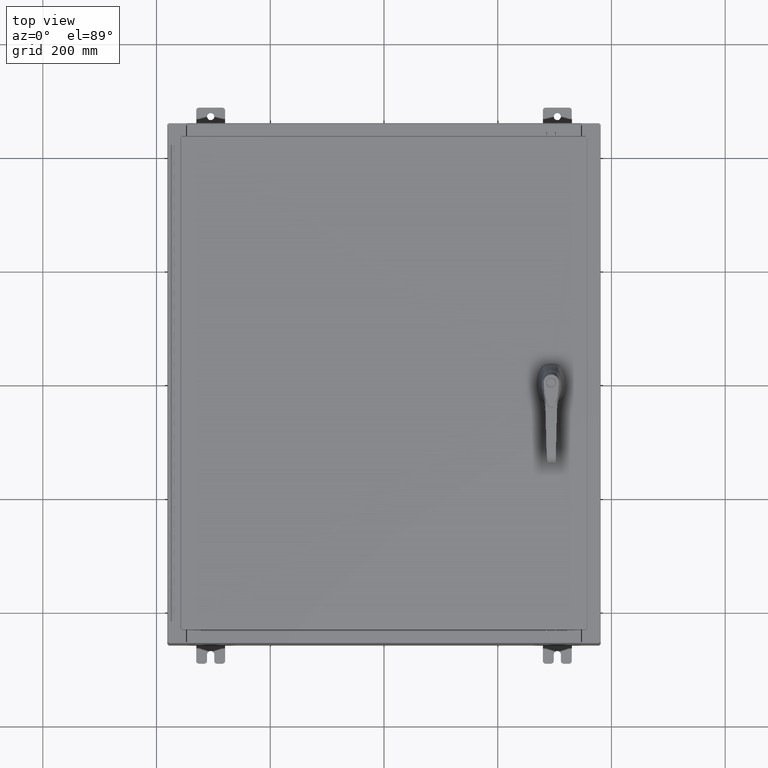
[diagram: clean part render]
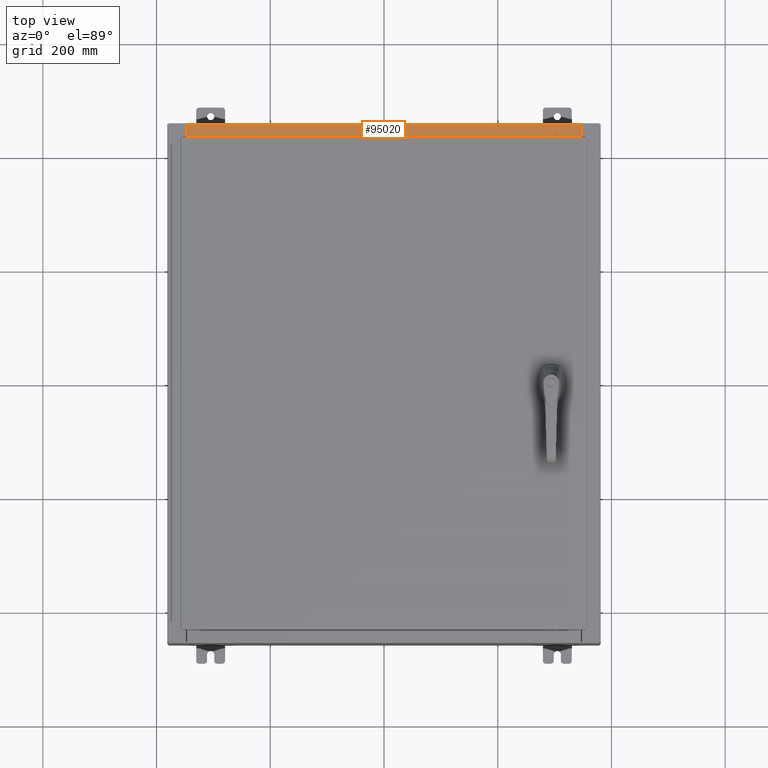
[diagram: same view with one face highlighted and labeled with its STEP entity id]
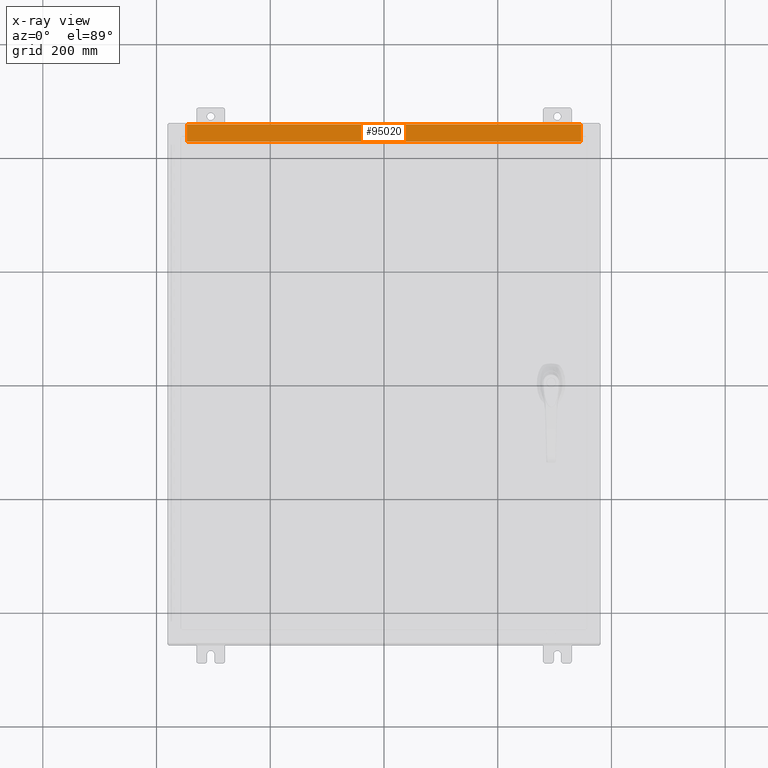
[diagram: x-ray of the same camera — body ghosted, the highlighted face saturated]
A machine part, top view. The second image highlights one B-rep face of the part: STEP entity #95020.
The next image is the same camera in x-ray: the body ghosted, the highlighted face saturated — about 0% of this face is hidden behind the body in this view.
In plain terms, the highlighted planar face has unit normal (0, 0, 1).
Its self-contained STEP definition (entity closure, byte-faithful):
#83 = FACE_OUTER_BOUND ( 'NONE', #82177, .T. ) ;
#753 = CARTESIAN_POINT ( 'NONE',  ( -13.63720000000000400, -0.07469999999999973900, 5.000000000000000000 ) ) ;
#1645 = ORIENTED_EDGE ( 'NONE', *, *, #39987, .F. ) ;
#2860 = CARTESIAN_POINT ( 'NONE',  ( 13.63719999999999800, -1.300299999999999800, 5.000000000000004400 ) ) ;
#4290 = VERTEX_POINT ( 'NONE', #94039 ) ;
#5804 = ORIENTED_EDGE ( 'NONE', *, *, #63566, .F. ) ;
#9500 = CARTESIAN_POINT ( 'NONE',  ( 13.63719999999999800, -1.287299999999999900, 5.000000000000002700 ) ) ;
#10260 = DIRECTION ( 'NONE',  ( -0.0000000000000000000, 1.000000000000000000, -3.566381192773190000E-015 ) ) ;
#11936 = LINE ( 'NONE', #121614, #74237 ) ;
#12373 = DIRECTION ( 'NONE',  ( -0.0000000000000000000, -1.000000000000000000, 3.566381192773190000E-015 ) ) ;
#14751 = VERTEX_POINT ( 'NONE', #63749 ) ;
#22777 = PLANE ( 'NONE',  #55351 ) ;
#27471 = EDGE_CURVE ( 'NONE', #14751, #105679, #11936, .T. ) ;
#34532 = LINE ( 'NONE', #9500, #84987 ) ;
#37779 = LINE ( 'NONE', #753, #60035 ) ;
#39987 = EDGE_CURVE ( 'NONE', #14751, #47295, #118356, .T. ) ;
#41878 = DIRECTION ( 'NONE',  ( 0.0000000000000000000, 3.566381192773190000E-015, 1.000000000000000000 ) ) ;
#47295 = VERTEX_POINT ( 'NONE', #105591 ) ;
#55163 = DIRECTION ( 'NONE',  ( -1.000000000000000000, -4.006464660875052000E-017, 1.428858021605520200E-031 ) ) ;
#55351 = AXIS2_PLACEMENT_3D ( 'NONE', #98653, #41878, #108277 ) ;
#60035 = VECTOR ( 'NONE', #10260, 39.37007874015748100 ) ;
#63566 = EDGE_CURVE ( 'NONE', #4290, #105679, #37779, .T. ) ;
#63749 = CARTESIAN_POINT ( 'NONE',  ( 13.63719999999999800, -0.08770000000000047200, 5.000000000000000000 ) ) ;
#67415 = CARTESIAN_POINT ( 'NONE',  ( -13.63720000000000400, -0.08770000000000081900, 5.000000000000000000 ) ) ;
#74237 = VECTOR ( 'NONE', #55163, 39.37007874015748100 ) ;
#82177 = EDGE_LOOP ( 'NONE', ( #5804, #106669, #1645, #112381 ) ) ;
#84987 = VECTOR ( 'NONE', #114039, 39.37007874015748100 ) ;
#94039 = CARTESIAN_POINT ( 'NONE',  ( -13.63720000000000400, -1.287299999999999200, 5.000000000000004400 ) ) ;
#95020 = ADVANCED_FACE ( 'NONE', ( #83 ), #22777, .T. ) ;
#95969 = VECTOR ( 'NONE', #12373, 39.37007874015748100 ) ;
#98653 = CARTESIAN_POINT ( 'NONE',  ( 0.0000000000000000000, 1.782631094477737600E-014, 5.000000000000000000 ) ) ;
#105122 = EDGE_CURVE ( 'NONE', #47295, #4290, #34532, .T. ) ;
#105591 = CARTESIAN_POINT ( 'NONE',  ( 13.63719999999999800, -1.287299999999999900, 5.000000000000004400 ) ) ;
#105679 = VERTEX_POINT ( 'NONE', #67415 ) ;
#106669 = ORIENTED_EDGE ( 'NONE', *, *, #105122, .F. ) ;
#108277 = DIRECTION ( 'NONE',  ( 0.0000000000000000000, -1.000000000000000000, 3.566381192773190000E-015 ) ) ;
#112381 = ORIENTED_EDGE ( 'NONE', *, *, #27471, .T. ) ;
#114039 = DIRECTION ( 'NONE',  ( -1.000000000000000000, 0.0000000000000000000, 0.0000000000000000000 ) ) ;
#118356 = LINE ( 'NONE', #2860, #95969 ) ;
#121614 = CARTESIAN_POINT ( 'NONE',  ( 3.513669507588167300E-018, -0.08770000000000081900, 5.000000000000000000 ) ) ;